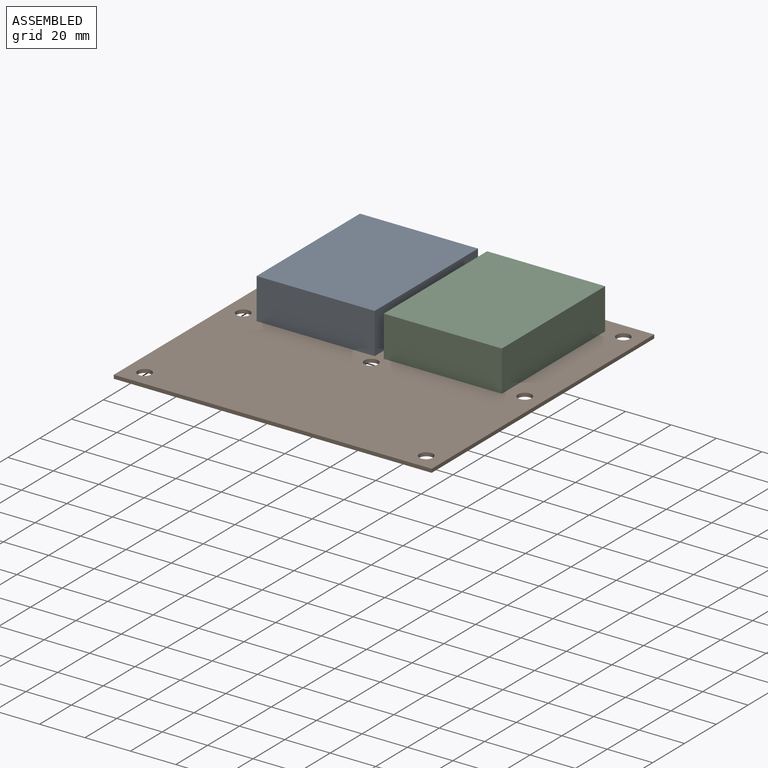
[diagram: assembled view]
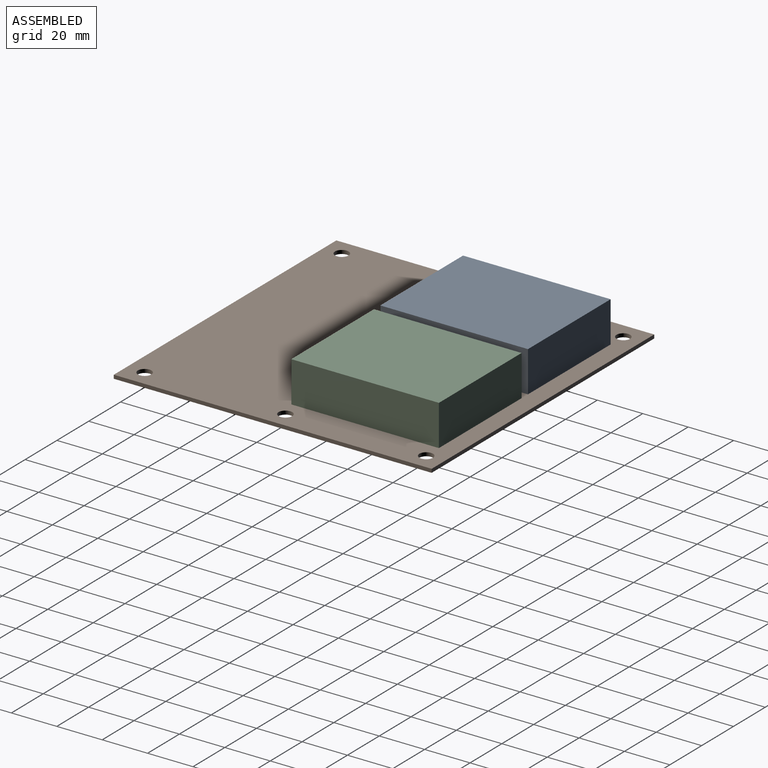
[diagram: assembled view, second angle]
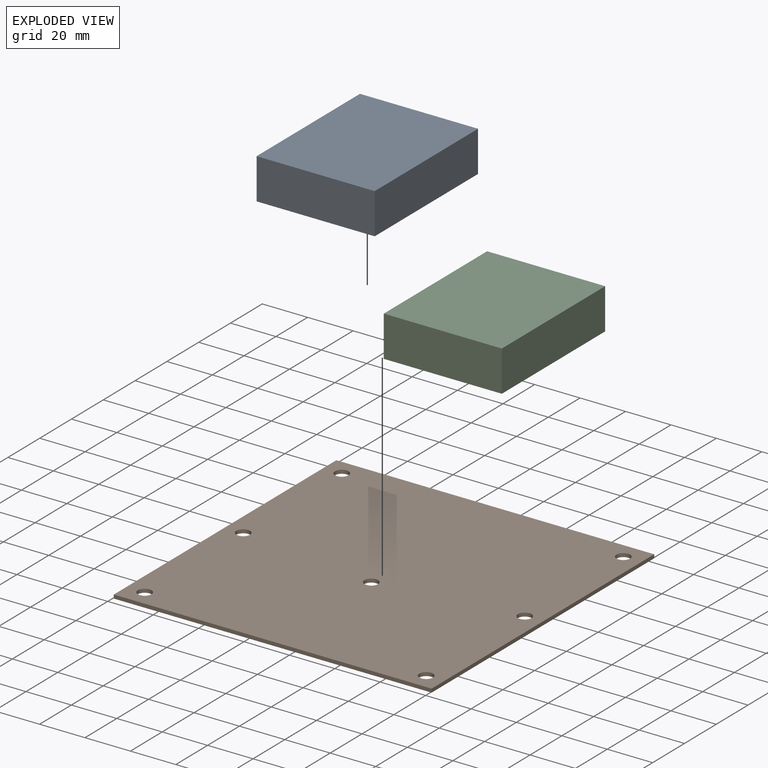
[diagram: exploded view]
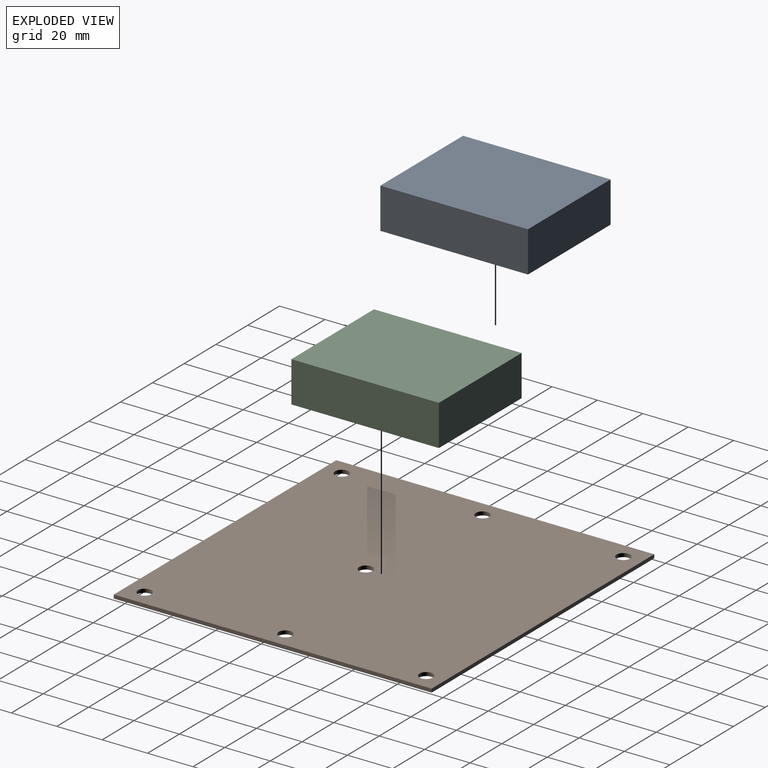
[diagram: exploded view, second angle]
ASSEMBLY  parts=3 mates=4
PART A: 6 faces, bbox 52x65x18 mm
  f0: plane 52x18mm, normal (0,-1,0), area 936mm2, adj f1,f3,f4,f5
  f1: plane 65x18mm, normal (1,0,0), area 1170mm2, adj f0,f2,f4,f5
  f2: plane 52x18mm, normal (0,1,0), area 936mm2, adj f1,f3,f4,f5
  f3: plane 65x18mm, normal (-1,0,0), area 1170mm2, adj f0,f2,f4,f5
  f4: plane 65x52mm, normal (0,0,1), area 3380mm2, adj f0,f1,f2,f3
  f5: plane 65x52mm, normal (0,0,-1), area 3380mm2, adj f0,f1,f2,f3
PART B: 13 faces, bbox 140x140x1.6 mm
  f0: plane 140x1.6mm, normal (0,-1,0), area 224mm2, adj f1,f10,f11,f12
  f1: plane 140x1.6mm, normal (1,0,0), area 224mm2, adj f0,f2,f11,f12
  f2: plane 140x1.6mm, normal (0,1,0), area 224mm2, adj f1,f10,f11,f12
  f3: cylinder r=3mm len=6mm, axis (0,0,-1), area 30.2mm2, adj f11,f12
  f4: cylinder r=3mm len=6mm, axis (0,0,-1), area 30.2mm2, adj f11,f12
  f5: cylinder r=3mm len=6mm, axis (0,0,-1), area 30.2mm2, adj f11,f12
  f6: cylinder r=3mm len=6mm, axis (0,0,-1), area 30.2mm2, adj f11,f12
  f7: cylinder r=3mm len=6mm, axis (0,0,-1), area 30.2mm2, adj f11,f12
  f8: cylinder r=3mm len=6mm, axis (0,0,-1), area 30.2mm2, adj f11,f12
  f9: cylinder r=3mm len=6mm, axis (0,0,-1), area 30.2mm2, adj f11,f12
  f10: plane 140x1.6mm, normal (-1,0,0), area 224mm2, adj f0,f2,f11,f12
  f11: plane 140x140mm, normal (0,0,1), area 19402.1mm2, adj f0,f1,f2,f3,f4,f5,f6,f7
  f12: plane 140x140mm, normal (0,0,-1), area 19402.1mm2, adj f0,f1,f2,f3,f4,f5,f6,f7
PART C: same geometry as A
PLACE A t=(26.1,77.46,39.02)mm
PLACE B t=(54.1,47.96,37.42)mm
PLACE C t=(82.1,77.46,39.02)mm
MATE parallel C.f5 <-> B.f11  axis (0,0,-1) through (82.1,77.46,39.02)mm
MATE planar A.f5 <-> B.f3  axis (0,0,-1) through (0.1,109.96,39.02)mm
MATE parallel A.f5 <-> B.f11  axis (0,0,-1) through (26.1,77.46,39.02)mm
MATE planar B.f4 <-> C.f5  axis (0,0,1) through (116.1,109.96,39.02)mm
